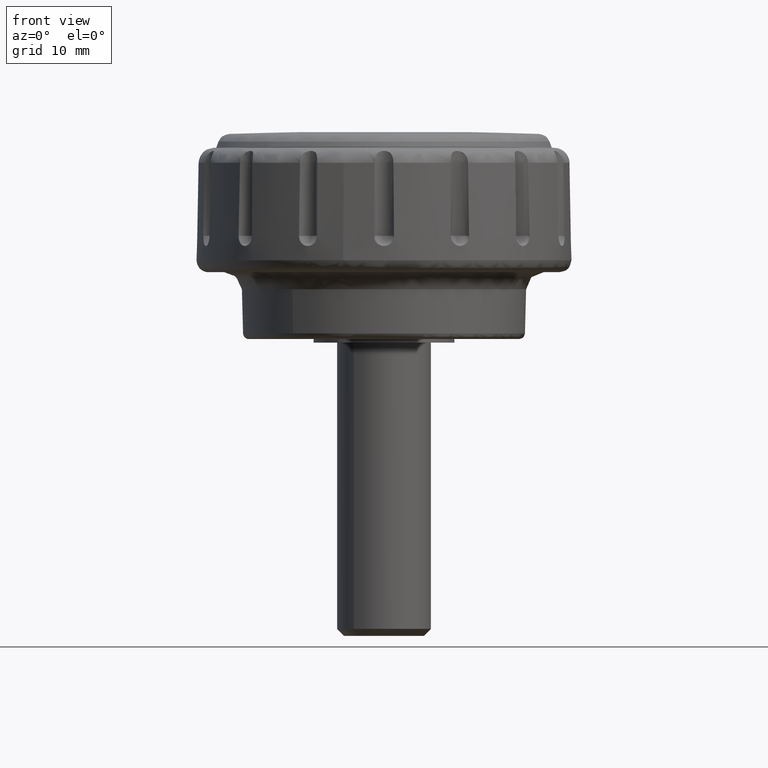
[diagram: clean part render]
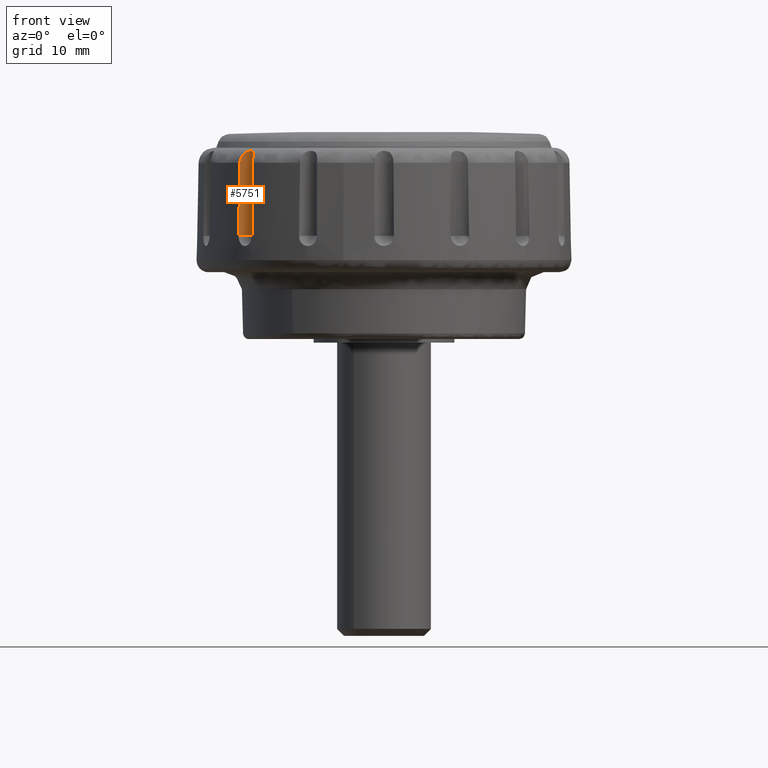
[diagram: same view with one face highlighted and labeled with its STEP entity id]
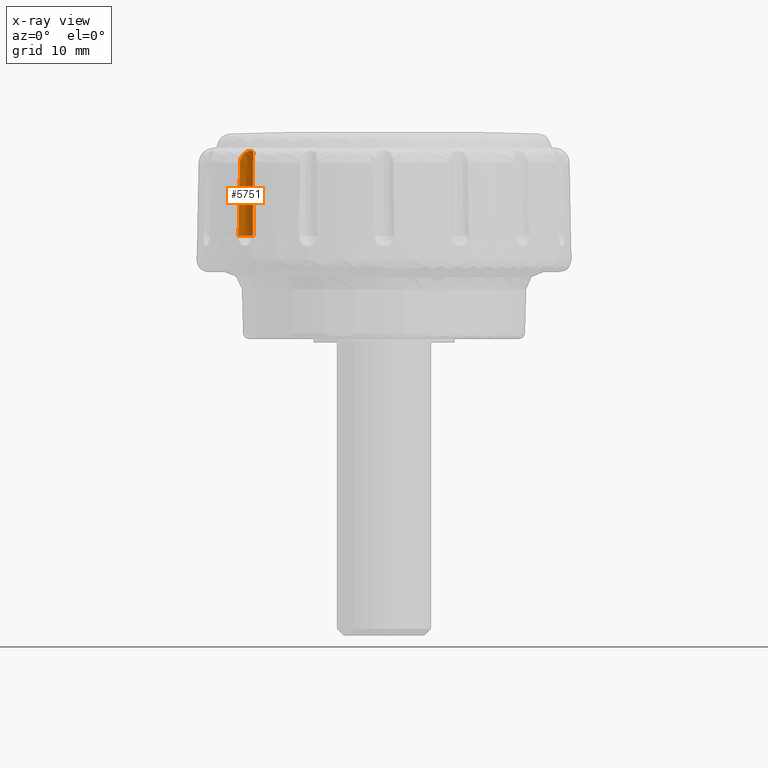
[diagram: x-ray of the same camera — body ghosted, the highlighted face saturated]
A machine part, front view. The second image highlights one B-rep face of the part: STEP entity #5751.
The next image is the same camera in x-ray: the body ghosted, the highlighted face saturated — about 0% of this face is hidden behind the body in this view.
In plain terms, the highlighted face is a freeform B-spline surface patch.
Its self-contained STEP definition (entity closure, byte-faithful):
#3057=CARTESIAN_POINT('',(-11.198486411424540,-11.161831719930960,15.326313504426750));
#3058=VERTEX_POINT('',#3057);
#3067=CARTESIAN_POINT('',(-11.255591029789899,-11.283037063597041,9.099991000000141));
#3068=VERTEX_POINT('',#3067);
#3069=CARTESIAN_POINT('',(-11.255591029789899,-11.283037063597041,9.099991000000141));
#3070=CARTESIAN_POINT('',(-11.198486411424540,-11.161831719930960,15.326313504426750));
#3071=QUASI_UNIFORM_CURVE('',1,(#3069,#3070),.UNSPECIFIED.,.F.,.U.);
#3072=EDGE_CURVE('',#3068,#3058,#3071,.T.);
#3074=CARTESIAN_POINT('',(-12.397757039512140,-10.014533199186980,9.099991000000120));
#3075=VERTEX_POINT('',#3074);
#3126=CARTESIAN_POINT('',(-12.271246613397359,-9.970410814209231,15.326313504426750));
#3127=VERTEX_POINT('',#3126);
#3128=CARTESIAN_POINT('',(-12.271246613397359,-9.970410814209231,15.326313504426750));
#3129=CARTESIAN_POINT('',(-12.397757039512140,-10.014533199186980,9.099991000000120));
#3130=QUASI_UNIFORM_CURVE('',1,(#3128,#3129),.UNSPECIFIED.,.F.,.U.);
#3131=EDGE_CURVE('',#3127,#3075,#3130,.T.);
#4611=CARTESIAN_POINT('',(-11.198486411424531,-11.161831719930939,15.326313504426750));
#4612=CARTESIAN_POINT('',(-11.197962902892350,-11.160464953177710,15.392275721103591));
#4613=CARTESIAN_POINT('',(-11.195455673404730,-11.154042802658090,15.457215844345260));
#4614=CARTESIAN_POINT('',(-11.187233783156801,-11.131013944540051,15.585084659193910));
#4615=CARTESIAN_POINT('',(-11.181489568645910,-11.114358587985340,15.648165348789490));
#4616=CARTESIAN_POINT('',(-11.168382463901651,-11.069414683330200,15.771480120165700));
#4617=CARTESIAN_POINT('',(-11.161191351011761,-11.041691031692899,15.830187260820820));
#4618=CARTESIAN_POINT('',(-11.151624729972021,-10.991424634405050,15.913622888200090));
#4619=CARTESIAN_POINT('',(-11.148646595830069,-10.973213455507070,15.940659858825750));
#4620=CARTESIAN_POINT('',(-11.143613539804139,-10.933624164471221,15.993099398981199));
#4621=CARTESIAN_POINT('',(-11.141579674321029,-10.912313400407760,16.018370617664171));
#4622=CARTESIAN_POINT('',(-11.137838515894130,-10.845045400736140,16.089836993467141));
#4623=CARTESIAN_POINT('',(-11.138391363664020,-10.795163591298429,16.132419336099559));
#4624=CARTESIAN_POINT('',(-11.150456567159580,-10.686330894354050,16.206696576304662));
#4625=CARTESIAN_POINT('',(-11.161736543655550,-10.629678063154660,16.236916716465409));
#4626=CARTESIAN_POINT('',(-11.188900269293701,-10.542678680275539,16.273372733730461));
#4627=CARTESIAN_POINT('',(-11.199787619055019,-10.513083238105670,16.284103694936640));
#4628=CARTESIAN_POINT('',(-11.224817152258680,-10.454947413154491,16.302198413553530));
#4629=CARTESIAN_POINT('',(-11.238928650557570,-10.426383020509361,16.309608231862100));
#4630=CARTESIAN_POINT('',(-11.270451364977429,-10.370391351631850,16.321470491403620));
#4631=CARTESIAN_POINT('',(-11.287861049583590,-10.342963348328610,16.325923424713800));
#4632=CARTESIAN_POINT('',(-11.326203096508481,-10.289381559081630,16.331938362176231));
#4633=CARTESIAN_POINT('',(-11.346850862683061,-10.263652105309779,16.333442616285961));
#4634=CARTESIAN_POINT('',(-11.390518888347390,-10.214921544374199,16.333568197326350));
#4635=CARTESIAN_POINT('',(-11.413617054252679,-10.191810870387901,16.332201752975379));
#4636=CARTESIAN_POINT('',(-11.462342817305140,-10.148102940246270,16.326516220408550));
#4637=CARTESIAN_POINT('',(-11.488135917907840,-10.127414831187391,16.322144624058801));
#4638=CARTESIAN_POINT('',(-11.540654397732039,-10.089745959449539,16.310487336771370));
#4639=CARTESIAN_POINT('',(-11.567527270919440,-10.072607946652070,16.303198625291220));
#4640=CARTESIAN_POINT('',(-11.622318803530121,-10.041530781943470,16.285489112634892));
#4641=CARTESIAN_POINT('',(-11.650369788431830,-10.027536768131791,16.275010779707209));
#4642=CARTESIAN_POINT('',(-11.734935851563559,-9.990582052035141,16.238602871068760));
#4643=CARTESIAN_POINT('',(-11.790329055066509,-9.973204515686621,16.208460699983139));
#4644=CARTESIAN_POINT('',(-11.870456586342360,-9.955402309841890,16.153291029476751));
#4645=CARTESIAN_POINT('',(-11.896570466887200,-9.950893938139783,16.133261844905370));
#4646=CARTESIAN_POINT('',(-11.946203504255040,-9.944354906163747,16.090859748792742));
#4647=CARTESIAN_POINT('',(-11.969908871913960,-9.942281067067851,16.068364298256721));
#4648=CARTESIAN_POINT('',(-12.015032322802080,-9.939947912510519,16.020775310077280));
#4649=CARTESIAN_POINT('',(-12.036554588106700,-9.939693721483303,15.995538181463861));
#4650=CARTESIAN_POINT('',(-12.076643102350250,-9.940480271486484,15.943208481862390));
#4651=CARTESIAN_POINT('',(-12.095198223939461,-9.941508847224968,15.916170960119111));
#4652=CARTESIAN_POINT('',(-12.129494707678621,-9.944315361848695,15.860425718516611));
#4653=CARTESIAN_POINT('',(-12.145235857524581,-9.946094651280291,15.831717933635810));
#4654=CARTESIAN_POINT('',(-12.174002648429809,-9.949986955850561,15.772672126267009));
#4655=CARTESIAN_POINT('',(-12.187044463265860,-9.952105602611466,15.742256066367609));
#4656=CARTESIAN_POINT('',(-12.221625430446631,-9.958337827596328,15.650174610634011));
#4657=CARTESIAN_POINT('',(-12.238929572070379,-9.962326240229935,15.587218446226860));
#4658=CARTESIAN_POINT('',(-12.263066150292101,-9.968177937887136,15.458347906808450));
#4659=CARTESIAN_POINT('',(-12.269830781064890,-9.970032550269119,15.392361151363790));
#4660=CARTESIAN_POINT('',(-12.271246613397359,-9.970410814209231,15.326313504426750));
#4661=B_SPLINE_CURVE_WITH_KNOTS('',3,(#4611,#4612,#4613,#4614,#4615,#4616,#4617,#4618,#4619,#4620,#4621,#4622,#4623,#4624,#4625,#4626,#4627,#4628,#4629,#4630,#4631,#4632,#4633,#4634,#4635,#4636,#4637,#4638,#4639,#4640,#4641,#4642,#4643,#4644,#4645,#4646,#4647,#4648,#4649,#4650,#4651,#4652,#4653,#4654,#4655,#4656,#4657,#4658,#4659,#4660),.UNSPECIFIED.,.F.,.U.,(4,2,2,2,2,2,2,2,2,2,2,2,2,2,2,2,2,2,2,2,2,2,2,2,4),(0.0,0.062500000000002,0.125000000000005,0.187500000000007,0.218750000000009,0.250000000000010,0.312500000000010,0.375000000000010,0.406250000000010,0.437500000000010,0.468750000000010,0.500000000000011,0.531250000000011,0.562500000000011,0.593750000000011,0.625000000000012,0.687500000000010,0.718750000000009,0.750000000000008,0.781250000000007,0.812500000000006,0.843750000000005,0.875000000000004,0.937500000000002,1.0),.UNSPECIFIED.);
#4662=EDGE_CURVE('',#3058,#3127,#4661,.T.);
#5153=CARTESIAN_POINT('',(-11.255591029789899,-11.283037063597041,9.099991000000141));
#5154=CARTESIAN_POINT('',(-11.200791608278040,-11.186341983094049,9.099991000000152));
#5155=CARTESIAN_POINT('',(-11.139308402313270,-11.006150908196799,9.099991000000136));
#5156=CARTESIAN_POINT('',(-11.135099023200960,-10.764433938275220,9.099991000000154));
#5157=CARTESIAN_POINT('',(-11.179843505517161,-10.539822230186600,9.099991000000134));
#5158=CARTESIAN_POINT('',(-11.277922101340780,-10.336977950240779,9.099991000000211));
#5159=CARTESIAN_POINT('',(-11.443473778143661,-10.153181471706370,9.099991000000134));
#5160=CARTESIAN_POINT('',(-11.653546521592039,-10.011199965609199,9.099991000000143));
#5161=CARTESIAN_POINT('',(-11.915228178448389,-9.932589823885170,9.099991000000140));
#5162=CARTESIAN_POINT('',(-12.181158941796911,-9.940594892656035,9.099991000000118));
#5163=CARTESIAN_POINT('',(-12.333391784899080,-9.986544033326375,9.099991000000125));
#5164=CARTESIAN_POINT('',(-12.397757039512140,-10.014533199186980,9.099991000000120));
#5165=B_SPLINE_CURVE_WITH_KNOTS('',3,(#5153,#5154,#5155,#5156,#5157,#5158,#5159,#5160,#5161,#5162,#5163,#5164),.UNSPECIFIED.,.F.,.U.,(4,1,1,1,1,1,1,1,1,4),(0.000000141602180,0.333401325566905,0.561536099830560,0.719470086163412,1.017801442061444,1.228338113446394,1.456478233393755,1.772350255883967,2.035570957379970,2.246141144515189),.UNSPECIFIED.);
#5166=EDGE_CURVE('',#3068,#3075,#5165,.T.);
#5727=CARTESIAN_POINT('',(-11.259487788222120,-11.289856147829060,16.514345387052781));
#5728=CARTESIAN_POINT('',(-11.259487788222120,-11.289856147829060,8.914632140323803));
#5729=CARTESIAN_POINT('',(-10.926547976381157,-10.713088933380524,16.514345387052774));
#5730=CARTESIAN_POINT('',(-10.926547976381157,-10.713088933380524,8.914632140323803));
#5731=CARTESIAN_POINT('',(-11.380771026283830,-10.226066594151060,16.514345387052781));
#5732=CARTESIAN_POINT('',(-11.380771026283830,-10.226066594151060,8.914632140323803));
#5733=CARTESIAN_POINT('',(-11.834994076186510,-9.739044254921604,16.514345387052774));
#5734=CARTESIAN_POINT('',(-11.834994076186510,-9.739044254921604,8.914632140323803));
#5735=CARTESIAN_POINT('',(-12.433537822876289,-10.031028366253000,16.514345387052781));
#5736=CARTESIAN_POINT('',(-12.433537822876289,-10.031028366253000,8.914632140323803));
#5744=(BOUNDED_SURFACE()B_SPLINE_SURFACE(1,2,((#5727,#5729,#5731,#5733,#5735),(#5728,#5730,#5732,#5734,#5736)),.UNSPECIFIED.,.F.,.F.,.U.)B_SPLINE_SURFACE_WITH_KNOTS((2,2),(3,2,3),(0.0,7.599713246728975),(0.0,1.0,2.0),.UNSPECIFIED.)GEOMETRIC_REPRESENTATION_ITEM()RATIONAL_B_SPLINE_SURFACE(((1.0,0.803856860617218,1.0,0.803856860617218,1.0),(1.0,0.803856860617218,1.0,0.803856860617218,1.0)))REPRESENTATION_ITEM('')SURFACE());
#5745=ORIENTED_EDGE('',*,*,#3131,.T.);
#5746=ORIENTED_EDGE('',*,*,#5166,.F.);
#5747=ORIENTED_EDGE('',*,*,#3072,.T.);
#5748=ORIENTED_EDGE('',*,*,#4662,.T.);
#5749=EDGE_LOOP('',(#5745,#5746,#5747,#5748));
#5750=FACE_OUTER_BOUND('',#5749,.T.);
#5751=ADVANCED_FACE('',(#5750),#5744,.F.);